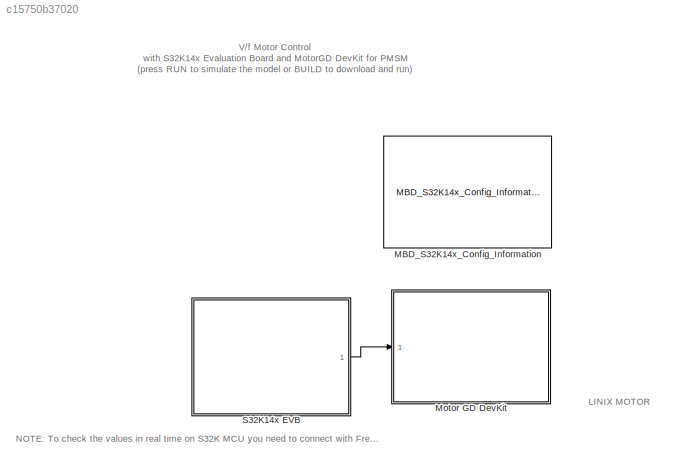
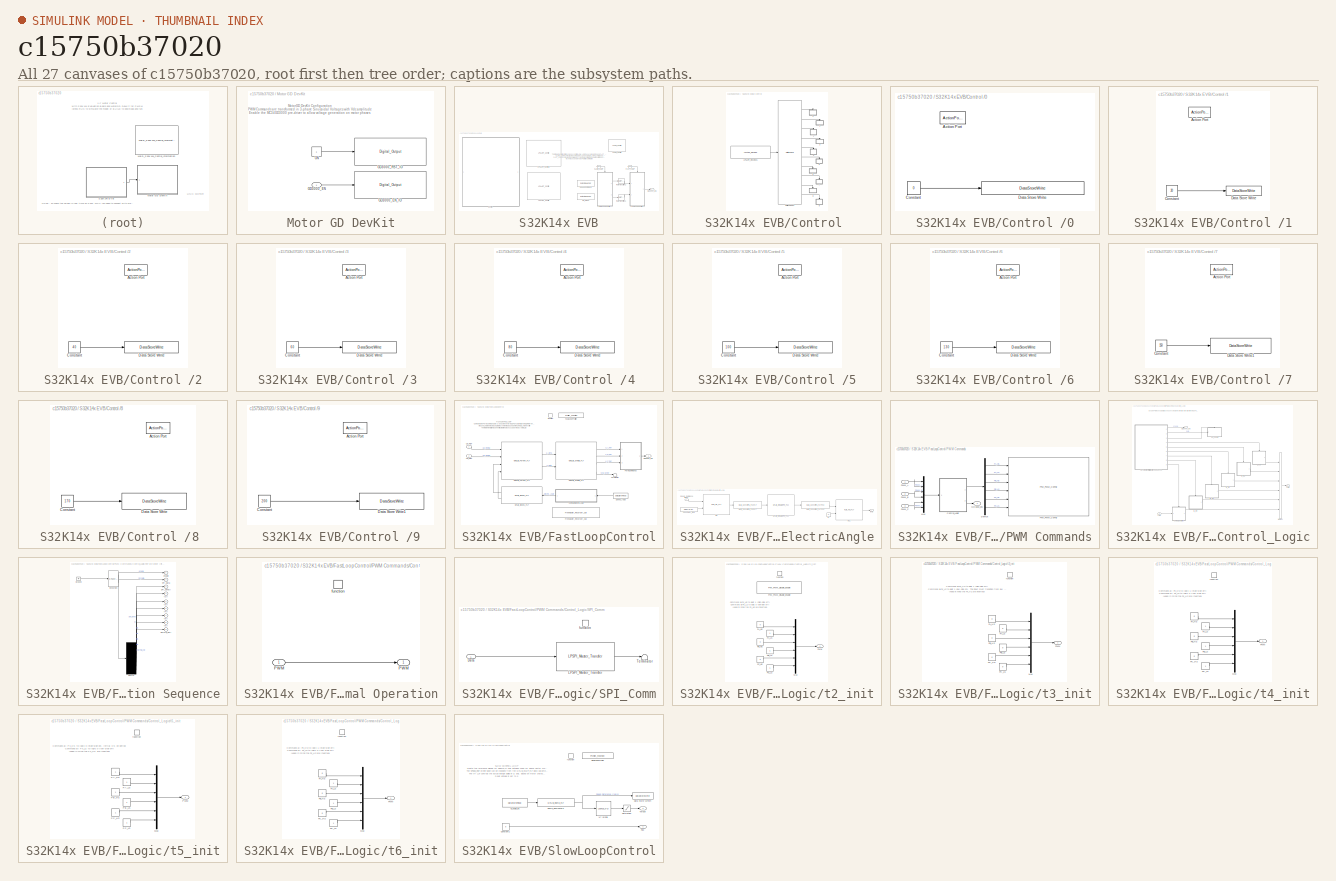
[diagram: thumbnail index - all 27 canvases of the model, root first then tree order]
MODEL slx_c15750b37020
KIND model
CONFIG AbsTol = auto
CONFIG EnableMultiTasking = off
CONFIG FixedStep = auto
CONFIG InitFcn = mbd_s32k14_consistency_checks(bdroot(gcs));
CONFIG MaxStep = auto
CONFIG MinStep = auto
CONFIG RelTol = 1e-3
CONFIG SampleTimeConstraint = Unconstrained
CONFIG Solver = FixedStepDiscrete
CONFIG SolverName = FixedStepDiscrete
CONFIG StartTime = 0.0
CONFIG StopTime = 2
WORKSPACE source: MAT-file member
WORKSPACE C_LST = 0.0001
BLOCK [Reference] MBD_S32K14x_Config_Information  REF=mbd_s32k14_ec_toolbox/MBD_S32K14x_Config_Information
  Ports = []
  Priority = 1
  SourceBlock = mbd_s32k14_ec_toolbox/MBD_S32K14x_Config_Information
  SourceType = MBDTBX_EC_S32K14
BLOCK [SubSystem] Motor GD DevKit
  Ports = [1]
  RequestExecContextInheritance = off
BLOCK [Inport] Motor GD DevKit/GD3000_EN
  IconDisplay = Port number
BLOCK [Reference] Motor GD DevKit/GD3000_EN_IO  REF=mbd_s32k14_ec_toolbox/GPIO Blocks/Digital_Output
  Ports = [1]
  SourceBlock = mbd_s32k14_ec_toolbox/GPIO Blocks/Digital_Output
  SourceType = gpio_s32k14_output
BLOCK [Reference] Motor GD DevKit/GD3000_RST_IO  REF=mbd_s32k14_ec_toolbox/GPIO Blocks/Digital_Output
  Ports = [1]
  SourceBlock = mbd_s32k14_ec_toolbox/GPIO Blocks/Digital_Output
  SourceType = gpio_s32k14_output
BLOCK [Constant] Motor GD DevKit/ON
  OutDataTypeStr = boolean
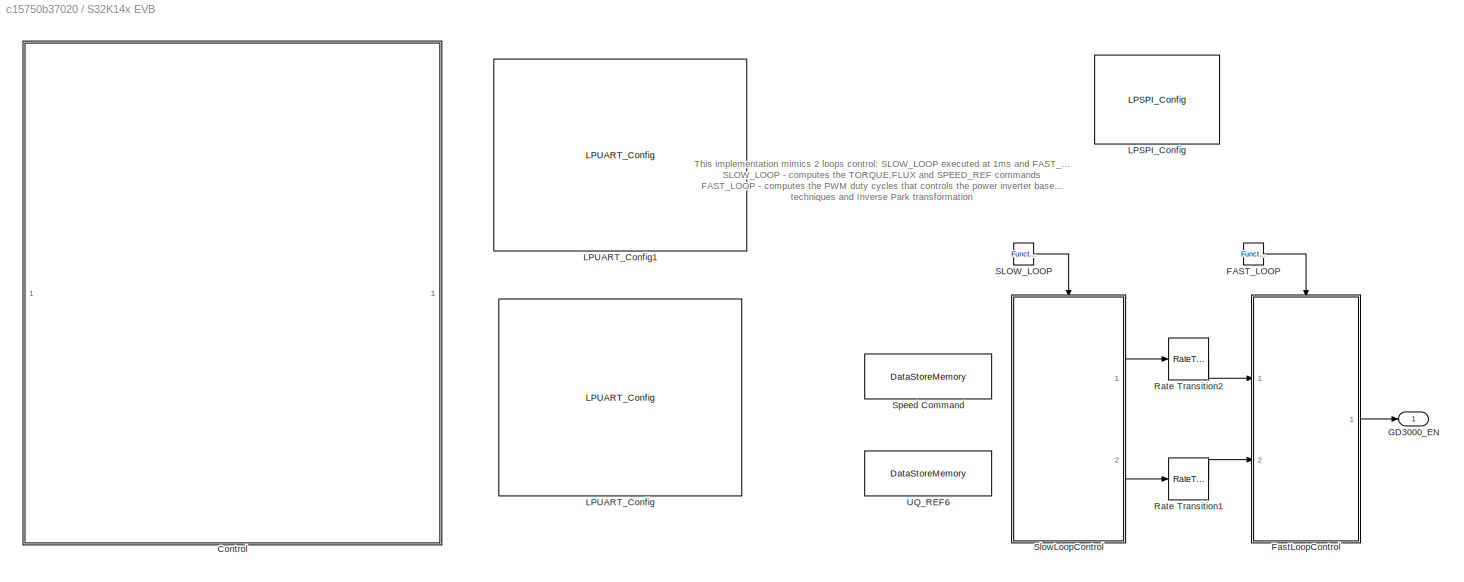
BLOCK [SubSystem] S32K14x EVB
  Ports = [0, 1]
  RequestExecContextInheritance = off
BLOCK [SubSystem] S32K14x EVB/Control 
  Ports = []
  RequestExecContextInheritance = off
BLOCK [SubSystem] S32K14x EVB/Control /0
  Ports = [0, 0, 0, 0, 0, 0, 0, 1]
  RequestExecContextInheritance = off
  TreatAsAtomicUnit = on
BLOCK [ActionPort] S32K14x EVB/Control /0/Action Port
  ActionType = case
BLOCK [Constant] S32K14x EVB/Control /0/Constant
  OutDataTypeStr = single
  Value = 0
BLOCK [DataStoreWrite] S32K14x EVB/Control /0/Data Store Write
  DataStoreName = SPEED_CMD
  Ports = [1]
BLOCK [SubSystem] S32K14x EVB/Control /1
  Ports = [0, 0, 0, 0, 0, 0, 0, 1]
  RequestExecContextInheritance = off
  TreatAsAtomicUnit = on
BLOCK [ActionPort] S32K14x EVB/Control /1/Action Port
  ActionType = case
BLOCK [Constant] S32K14x EVB/Control /1/Constant
  OutDataTypeStr = single
  Value = 20
BLOCK [DataStoreWrite] S32K14x EVB/Control /1/Data Store Write
  DataStoreName = SPEED_CMD
  Ports = [1]
BLOCK [SubSystem] S32K14x EVB/Control /2
  Ports = [0, 0, 0, 0, 0, 0, 0, 1]
  RequestExecContextInheritance = off
  TreatAsAtomicUnit = on
BLOCK [ActionPort] S32K14x EVB/Control /2/Action Port
  ActionType = case
BLOCK [Constant] S32K14x EVB/Control /2/Constant
  OutDataTypeStr = single
  Value = 40
BLOCK [DataStoreWrite] S32K14x EVB/Control /2/Data Store Write
  DataStoreName = SPEED_CMD
  Ports = [1]
BLOCK [SubSystem] S32K14x EVB/Control /3 
  Ports = [0, 0, 0, 0, 0, 0, 0, 1]
  RequestExecContextInheritance = off
  TreatAsAtomicUnit = on
BLOCK [ActionPort] S32K14x EVB/Control /3 /Action Port
  ActionType = case
BLOCK [Constant] S32K14x EVB/Control /3 /Constant
  OutDataTypeStr = single
  Value = 60
BLOCK [DataStoreWrite] S32K14x EVB/Control /3 /Data Store Write
  DataStoreName = SPEED_CMD
  Ports = [1]
BLOCK [SubSystem] S32K14x EVB/Control /4 
  Ports = [0, 0, 0, 0, 0, 0, 0, 1]
  RequestExecContextInheritance = off
  TreatAsAtomicUnit = on
BLOCK [ActionPort] S32K14x EVB/Control /4 /Action Port
  ActionType = case
BLOCK [Constant] S32K14x EVB/Control /4 /Constant
  OutDataTypeStr = single
  Value = 80
BLOCK [DataStoreWrite] S32K14x EVB/Control /4 /Data Store Write
  DataStoreName = SPEED_CMD
  Ports = [1]
BLOCK [SubSystem] S32K14x EVB/Control /5
  Ports = [0, 0, 0, 0, 0, 0, 0, 1]
  RequestExecContextInheritance = off
  TreatAsAtomicUnit = on
BLOCK [ActionPort] S32K14x EVB/Control /5/Action Port
  ActionType = case
BLOCK [Constant] S32K14x EVB/Control /5/Constant
  OutDataTypeStr = single
  Value = 100
BLOCK [DataStoreWrite] S32K14x EVB/Control /5/Data Store Write
  DataStoreName = SPEED_CMD
  Ports = [1]
BLOCK [SubSystem] S32K14x EVB/Control /6
  Ports = [0, 0, 0, 0, 0, 0, 0, 1]
  RequestExecContextInheritance = off
  TreatAsAtomicUnit = on
BLOCK [ActionPort] S32K14x EVB/Control /6/Action Port
  ActionType = case
BLOCK [Constant] S32K14x EVB/Control /6/Constant
  OutDataTypeStr = single
  Value = 130
BLOCK [DataStoreWrite] S32K14x EVB/Control /6/Data Store Write
  DataStoreName = SPEED_CMD
  Ports = [1]
BLOCK [SubSystem] S32K14x EVB/Control /7
  Ports = [0, 0, 0, 0, 0, 0, 0, 1]
  RequestExecContextInheritance = off
  TreatAsAtomicUnit = on
BLOCK [ActionPort] S32K14x EVB/Control /7/Action Port
  ActionType = case
BLOCK [Constant] S32K14x EVB/Control /7/Constant
  OutDataTypeStr = single
  Value = 150
BLOCK [DataStoreWrite] S32K14x EVB/Control /7/Data Store Write1
  DataStoreName = SPEED_REF
  Ports = [1]
BLOCK [SubSystem] S32K14x EVB/Control /8 
  Ports = [0, 0, 0, 0, 0, 0, 0, 1]
  RequestExecContextInheritance = off
  TreatAsAtomicUnit = on
BLOCK [ActionPort] S32K14x EVB/Control /8 /Action Port
  ActionType = case
BLOCK [Constant] S32K14x EVB/Control /8 /Constant
  OutDataTypeStr = single
  Value = 170
BLOCK [DataStoreWrite] S32K14x EVB/Control /8 /Data Store Write
  DataStoreName = SPEED_REF
  Ports = [1]
BLOCK [SubSystem] S32K14x EVB/Control /9
  Ports = [0, 0, 0, 0, 0, 0, 0, 1]
  RequestExecContextInheritance = off
  TreatAsAtomicUnit = on
BLOCK [ActionPort] S32K14x EVB/Control /9/Action Port
  ActionType = case
BLOCK [Constant] S32K14x EVB/Control /9/Constant
  OutDataTypeStr = single
  Value = 200
BLOCK [DataStoreWrite] S32K14x EVB/Control /9/Data Store Write1
  DataStoreName = SPEED_REF
  Ports = [1]
BLOCK [Reference] S32K14x EVB/Control /LPUART_Receive1  REF=mbd_s32k14_ec_toolbox/Communication Blocks/UART Blocks/LPUART_Receive
  Ports = [0, 1]
  Priority = 1
  SourceBlock = mbd_s32k14_ec_toolbox/Communication Blocks/UART Blocks/LPUART_Receive
  SourceType = lpuart_s32k14_receive
BLOCK [SwitchCase] S32K14x EVB/Control /Switch Case1
  CaseConditions = {hex2dec('030'),hex2dec('031'),hex2dec('032'),hex2dec('033'),hex2dec('034'),hex2dec('035'),hex2dec('036'),hex2dec('037'),hex2dec('038'),hex2dec('039')}
  Ports = [1, 10]
  ShowDefaultCase = off
BLOCK [Reference] S32K14x EVB/FAST_LOOP  REF=simulink/Ports &
Subsystems/Function-Call
Generator
  Ports = [0, 1]
  SourceBlock = simulink/Ports &\nSubsystems/Function-Call\nGenerator
  SourceProductBaseCode = SL
  SourceProductName = Simulink
  SourceType = Function-Call Generator
BLOCK [SubSystem] S32K14x EVB/FastLoopControl
  Ports = [2, 1, 0, 1]
  RTWFcnNameOpts = Use subsystem name
  RTWSystemCode = Reusable function
  RequestExecContextInheritance = off
BLOCK [SubSystem] S32K14x EVB/FastLoopControl/ComputeElectricAngle
  Ports = [1, 1]
  RTWFcnNameOpts = Use subsystem name
  RTWSystemCode = Reusable function
  RequestExecContextInheritance = off
  TreatAsAtomicUnit = on
BLOCK [Reference] S32K14x EVB/FastLoopControl/ComputeElectricAngle/DIV  REF=ammclib_bam_s32k14x/MLIB/bam_flt/MLIB_Div_FLT  (lib defined in mdl_f341c9dd7fd9)
  Ports = [2, 1]
  SourceBlock = ammclib_bam_s32k14x/MLIB/bam_flt/MLIB_Div_FLT
  SourceType = MLIB_Div_FLT
BLOCK [Reference] S32K14x EVB/FastLoopControl/ComputeElectricAngle/GFLIB_IntegratorTR_F32  REF=ammclib_bam_s32k14x/GFLIB/bam_f32/GFLIB_IntegratorTR_F32  (lib defined in mdl_f341c9dd7fd9)
  Ports = [1, 1]
  SourceBlock = ammclib_bam_s32k14x/GFLIB/bam_f32/GFLIB_IntegratorTR_F32
  SourceType = GFLIB_IntegratorTR_F32
BLOCK [Reference] S32K14x EVB/FastLoopControl/ComputeElectricAngle/MLIB_ConvertPU_F32FLT  REF=ammclib_bam_s32k14x/MLIB/bam_f32/MLIB_ConvertPU_F32FLT  (lib defined in mdl_f341c9dd7fd9)
  Ports = [1, 1]
  SourceBlock = ammclib_bam_s32k14x/MLIB/bam_f32/MLIB_ConvertPU_F32FLT
  SourceType = MLIB_ConvertPU_F32
BLOCK [Reference] S32K14x EVB/FastLoopControl/ComputeElectricAngle/MLIB_ConvertPU_FLTF32  REF=ammclib_bam_s32k14x/MLIB/bam_flt/MLIB_ConvertPU_FLTF32  (lib defined in mdl_f341c9dd7fd9)
  Ports = [1, 1]
  SourceBlock = ammclib_bam_s32k14x/MLIB/bam_flt/MLIB_ConvertPU_FLTF32
  SourceType = MLIB_ConvertPU_FLT
BLOCK [Reference] S32K14x EVB/FastLoopControl/ComputeElectricAngle/MUL  REF=ammclib_bam_s32k14x/MLIB/bam_flt/MLIB_Mul_FLT  (lib defined in mdl_f341c9dd7fd9)
  Ports = [2, 1]
  SourceBlock = ammclib_bam_s32k14x/MLIB/bam_flt/MLIB_Mul_FLT
  SourceType = MLIB_Mul_FLT
BLOCK [Constant] S32K14x EVB/FastLoopControl/ComputeElectricAngle/SpeedMax_rad//s
  OutDataTypeStr = Inherit: Inherit via back propagation
  Value = Nmax*(2*pi/60)
BLOCK [Inport] S32K14x EVB/FastLoopControl/ComputeElectricAngle/Speed_Reference [rad//s]
  IconDisplay = Port number
BLOCK [Constant] S32K14x EVB/FastLoopControl/ComputeElectricAngle/pi
  OutDataTypeStr = Inherit: Inherit via back propagation
  Value = pi
BLOCK [Outport] S32K14x EVB/FastLoopControl/ComputeElectricAngle/theta
  IconDisplay = Port number
  OutDataTypeStr = single
  SignalType = real
  VarSizeSig = No
BLOCK [Reference] S32K14x EVB/FastLoopControl/FastLoopProfiler  REF=mbd_s32k14_ec_toolbox/Utility Blocks/Profiler_Function
  Ports = []
  SourceBlock = mbd_s32k14_ec_toolbox/Utility Blocks/Profiler_Function
  SourceType = profiler_s32k14_func
BLOCK [Reference] S32K14x EVB/FastLoopControl/FreeMaster_Recorder_Call  REF=mbd_s32k14_ec_toolbox/Utility Blocks/FreeMaster_Recorder_Call
  Commented = on
  Ports = []
  SourceBlock = mbd_s32k14_ec_toolbox/Utility Blocks/FreeMaster_Recorder_Call
  SourceType = fm_s32k14_recorder_call
BLOCK [Outport] S32K14x EVB/FastLoopControl/GD3000_EN
  IconDisplay = Port number
BLOCK [Reference] S32K14x EVB/FastLoopControl/GFLIB_SinCos_FLT  REF=ammclib_bam_s32k14x/GFLIB/bam_flt/GFLIB_SinCos_FLT  (lib defined in mdl_f341c9dd7fd9)
  Ports = [1, 2]
  SourceBlock = ammclib_bam_s32k14x/GFLIB/bam_flt/GFLIB_SinCos_FLT
  SourceType = GFLIB_SinCos_FLT
BLOCK [Reference] S32K14x EVB/FastLoopControl/GMCLIB_ParkInv_FLT  REF=ammclib_bam_s32k14x/GMCLIB/bam_flt/GMCLIB_ParkInv_FLT  (lib defined in mdl_f341c9dd7fd9)
  Ports = [4, 2]
  SourceBlock = ammclib_bam_s32k14x/GMCLIB/bam_flt/GMCLIB_ParkInv_FLT
  SourceType = GMCLIB_ParkInv_FLT
BLOCK [Reference] S32K14x EVB/FastLoopControl/GMCLIB_SvmStd_FLT  REF=ammclib_bam_s32k14x/GMCLIB/bam_flt/GMCLIB_SvmStd_FLT  (lib defined in mdl_f341c9dd7fd9)
  Ports = [2, 4]
  SourceBlock = ammclib_bam_s32k14x/GMCLIB/bam_flt/GMCLIB_SvmStd_FLT
  SourceType = GMCLIB_SvmStd_FLT
BLOCK [SubSystem] S32K14x EVB/FastLoopControl/PWM Commands
  Ports = [3, 1]
  RequestExecContextInheritance = off
BLOCK [SubSystem] S32K14x EVB/FastLoopControl/PWM Commands/Control_Logic
  Ports = [1, 2]
  RequestExecContextInheritance = off
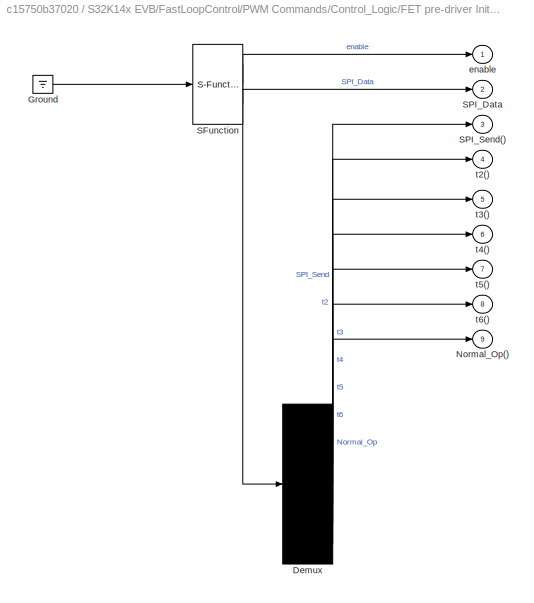
BLOCK [SubSystem] S32K14x EVB/FastLoopControl/PWM Commands/Control_Logic/FET pre-driver Initialization Sequence
  ErrorFcn = Stateflow.Translate.translate
  PermitHierarchicalResolution = ExplicitOnly
  Ports = [0, 9]
  RequestExecContextInheritance = off
  SFBlockType = Chart
  TreatAsAtomicUnit = on
BLOCK [Demux] S32K14x EVB/FastLoopControl/PWM Commands/Control_Logic/FET pre-driver Initialization Sequence/ Demux 
  Outputs = 7
  Ports = [1, 7]
BLOCK [Ground] S32K14x EVB/FastLoopControl/PWM Commands/Control_Logic/FET pre-driver Initialization Sequence/ Ground 
BLOCK [S-Function] S32K14x EVB/FastLoopControl/PWM Commands/Control_Logic/FET pre-driver Initialization Sequence/ SFunction 
  EnableBusSupport = on
  FunctionName = sf_sfun
  PortCounts = [1 3]
  Ports = [1, 3]
  SFcnIsStateOwnerBlock = off
  SFunctionDeploymentMode = off
  Tag = Stateflow S-Function Motor_control_S32K_Final 1
BLOCK [Outport] S32K14x EVB/FastLoopControl/PWM Commands/Control_Logic/FET pre-driver Initialization Sequence/Normal_Op()
  IconDisplay = Port number
  Port = 9
BLOCK [Outport] S32K14x EVB/FastLoopControl/PWM Commands/Control_Logic/FET pre-driver Initialization Sequence/SPI_Data
  IconDisplay = Port number
  Port = 2
BLOCK [Outport] S32K14x EVB/FastLoopControl/PWM Commands/Control_Logic/FET pre-driver Initialization Sequence/SPI_Send()
  IconDisplay = Port number
  Port = 3
BLOCK [Outport] S32K14x EVB/FastLoopControl/PWM Commands/Control_Logic/FET pre-driver Initialization Sequence/enable
  IconDisplay = Port number
BLOCK [Outport] S32K14x EVB/FastLoopControl/PWM Commands/Control_Logic/FET pre-driver Initialization Sequence/t2()
  IconDisplay = Port number
  Port = 4
BLOCK [Outport] S32K14x EVB/FastLoopControl/PWM Commands/Control_Logic/FET pre-driver Initialization Sequence/t3()
  IconDisplay = Port number
  Port = 5
BLOCK [Outport] S32K14x EVB/FastLoopControl/PWM Commands/Control_Logic/FET pre-driver Initialization Sequence/t4()
  IconDisplay = Port number
  Port = 6
BLOCK [Outport] S32K14x EVB/FastLoopControl/PWM Commands/Control_Logic/FET pre-driver Initialization Sequence/t5()
  IconDisplay = Port number
  Port = 7
BLOCK [Outport] S32K14x EVB/FastLoopControl/PWM Commands/Control_Logic/FET pre-driver Initialization Sequence/t6()
  IconDisplay = Port number
  Port = 8
BLOCK [Outport] S32K14x EVB/FastLoopControl/PWM Commands/Control_Logic/GD3000_EN
  IconDisplay = Port number
  Port = 2
BLOCK [Merge] S32K14x EVB/FastLoopControl/PWM Commands/Control_Logic/Merge1
  Inputs = 6
  Ports = [6, 1]
BLOCK [SubSystem] S32K14x EVB/FastLoopControl/PWM Commands/Control_Logic/Normal Operation
  Ports = [1, 1, 0, 1]
  RTWSystemCode = Reusable function
  RequestExecContextInheritance = off
  TreatAsAtomicUnit = on
BLOCK [Outport] S32K14x EVB/FastLoopControl/PWM Commands/Control_Logic/Normal Operation/PWM
  IconDisplay = Port number
  InitialOutput = 0
BLOCK [Inport] S32K14x EVB/FastLoopControl/PWM Commands/Control_Logic/Normal Operation/PWM 
  IconDisplay = Port number
  OutDataTypeStr = single
BLOCK [TriggerPort] S32K14x EVB/FastLoopControl/PWM Commands/Control_Logic/Normal Operation/function
  Ports = []
  StatesWhenEnabling = held
  TriggerType = function-call
  VariantControl = (inherit)
BLOCK [Inport] S32K14x EVB/FastLoopControl/PWM Commands/Control_Logic/PWM
  IconDisplay = Port number
BLOCK [Outport] S32K14x EVB/FastLoopControl/PWM Commands/Control_Logic/PWM 
  IconDisplay = Port number
BLOCK [SubSystem] S32K14x EVB/FastLoopControl/PWM Commands/Control_Logic/SPI_Comm
  Ports = [1, 0, 0, 1]
  RequestExecContextInheritance = off
BLOCK [Inport] S32K14x EVB/FastLoopControl/PWM Commands/Control_Logic/SPI_Comm/Data
  IconDisplay = Port number
BLOCK [Reference] S32K14x EVB/FastLoopControl/PWM Commands/Control_Logic/SPI_Comm/LPSPI_Master_Transfer  REF=mbd_s32k14_ec_toolbox/Communication Blocks/SPI Blocks/LPSPI_Master_Transfer
  Ports = [1, 1]
  SourceBlock = mbd_s32k14_ec_toolbox/Communication Blocks/SPI Blocks/LPSPI_Master_Transfer
  SourceType = lpspi_s32k14_master_transfer
BLOCK [Terminator] S32K14x EVB/FastLoopControl/PWM Commands/Control_Logic/SPI_Comm/Terminator
BLOCK [TriggerPort] S32K14x EVB/FastLoopControl/PWM Commands/Control_Logic/SPI_Comm/function
  Ports = []
  StatesWhenEnabling = held
  TriggerType = function-call
  VariantControl = (inherit)
BLOCK [SubSystem] S32K14x EVB/FastLoopControl/PWM Commands/Control_Logic/t2_init
  Ports = [0, 1, 0, 1]
  RTWSystemCode = Reusable function
  RequestExecContextInheritance = off
  TreatAsAtomicUnit = on
BLOCK [Reference] S32K14x EVB/FastLoopControl/PWM Commands/Control_Logic/t2_init/FTM_PWM_Disable_Enable  REF=mbd_s32k14_ec_toolbox/Motor Control Blocks/FTM Blocks/FTM_PWM_Disable_Enable
  Ports = []
  Priority = 1
  SourceBlock = mbd_s32k14_ec_toolbox/Motor Control Blocks/FTM Blocks/FTM_PWM_Disable_Enable
  SourceType = ftm_s32k14_pwm_disen
BLOCK [Mux] S32K14x EVB/FastLoopControl/PWM Commands/Control_Logic/t2_init/Mux
  DisplayOption = bar
  Inputs = 6
  Ports = [6, 1]
BLOCK [Constant] S32K14x EVB/FastLoopControl/PWM Commands/Control_Logic/t2_init/PA_HS
  OutDataTypeStr = single
  SampleTime = -1
  Value = 0
BLOCK [Constant] S32K14x EVB/FastLoopControl/PWM Commands/Control_Logic/t2_init/PA_LS
  OutDataTypeStr = single
  SampleTime = -1
BLOCK [Constant] S32K14x EVB/FastLoopControl/PWM Commands/Control_Logic/t2_init/PB_HS
  OutDataTypeStr = single
  SampleTime = -1
  Value = 0
BLOCK [Constant] S32K14x EVB/FastLoopControl/PWM Commands/Control_Logic/t2_init/PB_LS
  OutDataTypeStr = single
  SampleTime = -1
BLOCK [Constant] S32K14x EVB/FastLoopControl/PWM Commands/Control_Logic/t2_init/PC_HS
  OutDataTypeStr = single
  SampleTime = -1
  Value = 0
BLOCK [Constant] S32K14x EVB/FastLoopControl/PWM Commands/Control_Logic/t2_init/PC_LS
  OutDataTypeStr = single
  SampleTime = -1
BLOCK [Outport] S32K14x EVB/FastLoopControl/PWM Commands/Control_Logic/t2_init/PWM
  IconDisplay = Port number
  InitialOutput = 0
  OutDataTypeStr = single
BLOCK [TriggerPort] S32K14x EVB/FastLoopControl/PWM Commands/Control_Logic/t2_init/function
  Ports = []
  StatesWhenEnabling = held
  TriggerType = function-call
  VariantControl = (inherit)
BLOCK [SubSystem] S32K14x EVB/FastLoopControl/PWM Commands/Control_Logic/t3_init
  Ports = [0, 1, 0, 1]
  RTWSystemCode = Reusable function
  RequestExecContextInheritance = off
  TreatAsAtomicUnit = on
BLOCK [Mux] S32K14x EVB/FastLoopControl/PWM Commands/Control_Logic/t3_init/Mux
  DisplayOption = bar
  Inputs = 6
  Ports = [6, 1]
BLOCK [Constant] S32K14x EVB/FastLoopControl/PWM Commands/Control_Logic/t3_init/PA_HS
  OutDataTypeStr = single
  SampleTime = -1
  Value = 0
BLOCK [Constant] S32K14x EVB/FastLoopControl/PWM Commands/Control_Logic/t3_init/PA_LS
  OutDataTypeStr = single
  SampleTime = -1
  Value = 0
BLOCK [Constant] S32K14x EVB/FastLoopControl/PWM Commands/Control_Logic/t3_init/PB_HS
  OutDataTypeStr = single
  SampleTime = -1
  Value = 0
BLOCK [Constant] S32K14x EVB/FastLoopControl/PWM Commands/Control_Logic/t3_init/PB_LS
  OutDataTypeStr = single
  SampleTime = -1
  Value = 0
BLOCK [Constant] S32K14x EVB/FastLoopControl/PWM Commands/Control_Logic/t3_init/PC_HS
  OutDataTypeStr = single
  SampleTime = -1
  Value = 0
BLOCK [Constant] S32K14x EVB/FastLoopControl/PWM Commands/Control_Logic/t3_init/PC_LS
  OutDataTypeStr = single
  SampleTime = -1
  Value = 0
BLOCK [Outport] S32K14x EVB/FastLoopControl/PWM Commands/Control_Logic/t3_init/PWM
  IconDisplay = Port number
  InitialOutput = 0
  OutDataTypeStr = single
BLOCK [TriggerPort] S32K14x EVB/FastLoopControl/PWM Commands/Control_Logic/t3_init/function
  Ports = []
  StatesWhenEnabling = held
  TriggerType = function-call
  VariantControl = (inherit)
BLOCK [SubSystem] S32K14x EVB/FastLoopControl/PWM Commands/Control_Logic/t4_init
  Ports = [0, 1, 0, 1]
  RTWSystemCode = Reusable function
  RequestExecContextInheritance = off
  TreatAsAtomicUnit = on
BLOCK [Mux] S32K14x EVB/FastLoopControl/PWM Commands/Control_Logic/t4_init/Mux
  DisplayOption = bar
  Inputs = 6
  Ports = [6, 1]
BLOCK [Constant] S32K14x EVB/FastLoopControl/PWM Commands/Control_Logic/t4_init/PA_HS
  OutDataTypeStr = single
  SampleTime = -1
  Value = 0
BLOCK [Constant] S32K14x EVB/FastLoopControl/PWM Commands/Control_Logic/t4_init/PA_LS
  OutDataTypeStr = single
  SampleTime = -1
BLOCK [Constant] S32K14x EVB/FastLoopControl/PWM Commands/Control_Logic/t4_init/PB_HS
  OutDataTypeStr = single
  SampleTime = -1
  Value = 0
BLOCK [Constant] S32K14x EVB/FastLoopControl/PWM Commands/Control_Logic/t4_init/PB_LS
  OutDataTypeStr = single
  SampleTime = -1
BLOCK [Constant] S32K14x EVB/FastLoopControl/PWM Commands/Control_Logic/t4_init/PC_HS
  OutDataTypeStr = single
  SampleTime = -1
  Value = 0
BLOCK [Constant] S32K14x EVB/FastLoopControl/PWM Commands/Control_Logic/t4_init/PC_LS
  OutDataTypeStr = single
  SampleTime = -1
BLOCK [Outport] S32K14x EVB/FastLoopControl/PWM Commands/Control_Logic/t4_init/PWM
  IconDisplay = Port number
  InitialOutput = 0
  OutDataTypeStr = single
BLOCK [TriggerPort] S32K14x EVB/FastLoopControl/PWM Commands/Control_Logic/t4_init/function
  Ports = []
  StatesWhenEnabling = held
  TriggerType = function-call
  VariantControl = (inherit)
BLOCK [SubSystem] S32K14x EVB/FastLoopControl/PWM Commands/Control_Logic/t5_init
  Ports = [0, 1, 0, 1]
  RTWSystemCode = Reusable function
  RequestExecContextInheritance = off
  TreatAsAtomicUnit = on
BLOCK [Mux] S32K14x EVB/FastLoopControl/PWM Commands/Control_Logic/t5_init/Mux
  DisplayOption = bar
  Inputs = 6
  Ports = [6, 1]
BLOCK [Constant] S32K14x EVB/FastLoopControl/PWM Commands/Control_Logic/t5_init/PA_HS
  OutDataTypeStr = single
  SampleTime = -1
BLOCK [Constant] S32K14x EVB/FastLoopControl/PWM Commands/Control_Logic/t5_init/PA_LS
  OutDataTypeStr = single
  SampleTime = -1
BLOCK [Constant] S32K14x EVB/FastLoopControl/PWM Commands/Control_Logic/t5_init/PB_HS
  OutDataTypeStr = single
  SampleTime = -1
BLOCK [Constant] S32K14x EVB/FastLoopControl/PWM Commands/Control_Logic/t5_init/PB_LS
  OutDataTypeStr = single
  SampleTime = -1
BLOCK [Constant] S32K14x EVB/FastLoopControl/PWM Commands/Control_Logic/t5_init/PC_HS
  OutDataTypeStr = single
  SampleTime = -1
BLOCK [Constant] S32K14x EVB/FastLoopControl/PWM Commands/Control_Logic/t5_init/PC_LS
  OutDataTypeStr = single
  SampleTime = -1
BLOCK [Outport] S32K14x EVB/FastLoopControl/PWM Commands/Control_Logic/t5_init/PWM
  IconDisplay = Port number
  InitialOutput = 0
  OutDataTypeStr = single
BLOCK [TriggerPort] S32K14x EVB/FastLoopControl/PWM Commands/Control_Logic/t5_init/function
  Ports = []
  StatesWhenEnabling = held
  TriggerType = function-call
  VariantControl = (inherit)
BLOCK [SubSystem] S32K14x EVB/FastLoopControl/PWM Commands/Control_Logic/t6_init
  Ports = [0, 1, 0, 1]
  RTWSystemCode = Reusable function
  RequestExecContextInheritance = off
  TreatAsAtomicUnit = on
BLOCK [Mux] S32K14x EVB/FastLoopControl/PWM Commands/Control_Logic/t6_init/Mux
  DisplayOption = bar
  Inputs = 6
  Ports = [6, 1]
BLOCK [Constant] S32K14x EVB/FastLoopControl/PWM Commands/Control_Logic/t6_init/PA_HS
  OutDataTypeStr = single
  SampleTime = -1
  Value = 0
BLOCK [Constant] S32K14x EVB/FastLoopControl/PWM Commands/Control_Logic/t6_init/PA_LS
  OutDataTypeStr = single
  SampleTime = -1
BLOCK [Constant] S32K14x EVB/FastLoopControl/PWM Commands/Control_Logic/t6_init/PB_HS
  OutDataTypeStr = single
  SampleTime = -1
  Value = 0
BLOCK [Constant] S32K14x EVB/FastLoopControl/PWM Commands/Control_Logic/t6_init/PB_LS
  OutDataTypeStr = single
  SampleTime = -1
BLOCK [Constant] S32K14x EVB/FastLoopControl/PWM Commands/Control_Logic/t6_init/PC_HS
  OutDataTypeStr = single
  SampleTime = -1
  Value = 0
BLOCK [Constant] S32K14x EVB/FastLoopControl/PWM Commands/Control_Logic/t6_init/PC_LS
  OutDataTypeStr = single
  SampleTime = -1
BLOCK [Outport] S32K14x EVB/FastLoopControl/PWM Commands/Control_Logic/t6_init/PWM
  IconDisplay = Port number
  InitialOutput = 0
  OutDataTypeStr = single
BLOCK [TriggerPort] S32K14x EVB/FastLoopControl/PWM Commands/Control_Logic/t6_init/function
  Ports = []
  StatesWhenEnabling = held
  TriggerType = function-call
  VariantControl = (inherit)
BLOCK [Demux] S32K14x EVB/FastLoopControl/PWM Commands/Demux
  DisplayOption = bar
  Outputs = 6
  Ports = [1, 6]
BLOCK [Reference] S32K14x EVB/FastLoopControl/PWM Commands/FTM_PWM_Config  REF=mbd_s32k14_ec_toolbox/Motor Control Blocks/FTM Blocks/FTM_PWM_Config
  Ports = [6]
  SourceBlock = mbd_s32k14_ec_toolbox/Motor Control Blocks/FTM Blocks/FTM_PWM_Config
  SourceType = FTM_s32k14_pwm_config_block
BLOCK [Outport] S32K14x EVB/FastLoopControl/PWM Commands/GD3000_EN
  IconDisplay = Port number
BLOCK [Mux] S32K14x EVB/FastLoopControl/PWM Commands/Mux
  DisplayOption = bar
  Inputs = 6
  Ports = [6, 1]
BLOCK [Inport] S32K14x EVB/FastLoopControl/PWM Commands/PWM_A
  IconDisplay = Port number
BLOCK [Inport] S32K14x EVB/FastLoopControl/PWM Commands/PWM_B
  IconDisplay = Port number
  Port = 2
BLOCK [Inport] S32K14x EVB/FastLoopControl/PWM Commands/PWM_C
  IconDisplay = Port number
  Port = 3
BLOCK [DataStoreRead] S32K14x EVB/FastLoopControl/Speed_rad//s
  DataStoreName = SPEED_REF
  Ports = [0, 1]
BLOCK [Terminator] S32K14x EVB/FastLoopControl/Terminator
BLOCK [Inport] S32K14x EVB/FastLoopControl/UD_REF
  IconDisplay = Port number
BLOCK [Inport] S32K14x EVB/FastLoopControl/UQ_REF
  IconDisplay = Port number
  Port = 2
BLOCK [TriggerPort] S32K14x EVB/FastLoopControl/function
  Ports = []
  StatesWhenEnabling = held
  TriggerType = function-call
  VariantControl = (inherit)
BLOCK [Outport] S32K14x EVB/GD3000_EN
  IconDisplay = Port number
BLOCK [Reference] S32K14x EVB/LPSPI_Config   REF=mbd_s32k14_ec_toolbox/Communication Blocks/SPI Blocks/LPSPI_Config

  Ports = []
  SourceBlock = mbd_s32k14_ec_toolbox/Communication Blocks/SPI Blocks/LPSPI_Config
  SourceType = lpspi_s32k14_config
BLOCK [Reference] S32K14x EVB/LPUART_Config  REF=mbd_s32k14_ec_toolbox/Communication Blocks/UART Blocks/LPUART_Config
  Ports = []
  Priority = 1
  SourceBlock = mbd_s32k14_ec_toolbox/Communication Blocks/UART Blocks/LPUART_Config
  SourceType = lpuart_s32k14_config
BLOCK [Reference] S32K14x EVB/LPUART_Config1  REF=mbd_s32k14_ec_toolbox/Communication Blocks/UART Blocks/LPUART_Config
  Ports = []
  Priority = 2
  SourceBlock = mbd_s32k14_ec_toolbox/Communication Blocks/UART Blocks/LPUART_Config
  SourceType = lpuart_s32k14_config
BLOCK [RateTransition] S32K14x EVB/Rate Transition1
  OutPortSampleTime = C_LST
BLOCK [RateTransition] S32K14x EVB/Rate Transition2
  OutPortSampleTime = C_LST
BLOCK [Reference] S32K14x EVB/SLOW_LOOP  REF=simulink/Ports &
Subsystems/Function-Call
Generator
  Ports = [0, 1]
  SourceBlock = simulink/Ports &\nSubsystems/Function-Call\nGenerator
  SourceProductBaseCode = SL
  SourceProductName = Simulink
  SourceType = Function-Call Generator
BLOCK [SubSystem] S32K14x EVB/SlowLoopControl
  Ports = [0, 2, 0, 1]
  RTWFcnNameOpts = Use subsystem name
  RTWSystemCode = Reusable function
  RequestExecContextInheritance = off
BLOCK [Constant] S32K14x EVB/SlowLoopControl/Constant1
  OutDataTypeStr = single
  SampleTime = -1
  Value = 0
BLOCK [DataStoreWrite] S32K14x EVB/SlowLoopControl/Data Store Write4
  DataStoreName = SPEED_REF
  Ports = [1]
BLOCK [Outport] S32K14x EVB/SlowLoopControl/Flux
  IconDisplay = Port number
BLOCK [Reference] S32K14x EVB/SlowLoopControl/Ramp_RPM2RAD//S  REF=ammclib_bam_s32k14x/GFLIB/bam_flt/GFLIB_Ramp_FLT  (lib defined in mdl_f341c9dd7fd9)
  Ports = [1, 1]
  SourceBlock = ammclib_bam_s32k14x/GFLIB/bam_flt/GFLIB_Ramp_FLT
  SourceType = GFLIB_Ramp
BLOCK [Saturate] S32K14x EVB/SlowLoopControl/Saturation
  InputPortMap = u0
  LowerLimit = 0
  Ports = [1, 1]
  UpperLimit = 0.95
BLOCK [Reference] S32K14x EVB/SlowLoopControl/SlowLoopProfiler  REF=mbd_s32k14_ec_toolbox/Utility Blocks/Profiler_Function
  Ports = []
  SourceBlock = mbd_s32k14_ec_toolbox/Utility Blocks/Profiler_Function
  SourceType = profiler_s32k14_func
BLOCK [Outport] S32K14x EVB/SlowLoopControl/Torque
  IconDisplay = Port number
  Port = 2
BLOCK [Lookup_n-D] S32K14x EVB/SlowLoopControl/V//f profile
  BreakpointsForDimension1 = [0:20.94:209.4]
  InternalRulePriority = Speed
  NumberOfTableDimensions = 1
  Ports = [1, 1]
  RndMeth = Simplest
  Table = [0.20:0.075:0.95]
BLOCK [DataStoreRead] S32K14x EVB/SlowLoopControl/el_angle_inc
  DataStoreName = SPEED_CMD
  Ports = [0, 1]
BLOCK [TriggerPort] S32K14x EVB/SlowLoopControl/function
  Ports = []
  StatesWhenEnabling = held
  TriggerType = function-call
  VariantControl = (inherit)
BLOCK [DataStoreMemory] S32K14x EVB/Speed Command
  DataLogging = on
  DataStoreName = SPEED_CMD
  OutDataTypeStr = single
  OutMax = 200
  OutMin = -100
  ReadBeforeWriteMsg = warning
  ShowAdditionalParam = off
  WriteAfterReadMsg = warning
  WriteAfterWriteMsg = warning
BLOCK [DataStoreMemory] S32K14x EVB/UQ_REF6
  DataStoreName = SPEED_REF
  OutDataTypeStr = single
  ReadBeforeWriteMsg = warning
  ShowAdditionalParam = off
  WriteAfterReadMsg = warning
  WriteAfterWriteMsg = warning
ANNOTATION (root): NOTE: To check the values in real time on S32K MCU you need to connect with FreeMASTER project associated with this model. Make sure you configure the serial communication channel correctly by verifying the OpenSDA setup.
ANNOTATION (root): V/f Motor Control with S32K14x Evaluation Board and MotorGD DevKit for PMSM (press RUN to simulate the model or BUILD to download and run)
ANNOTATION (root): LINIX MOTOR
ANNOTATION Motor GD DevKit: MotorGD DevKit Configuration PWM Commands are transformed in 3-phase Sinusoidal Voltages with Vdc amplitude Enable the MC34GD3000 pre-driver to allow voltage generation on motor phases
ANNOTATION S32K14x EVB: This implementation mimics 2 loops control: SLOW_LOOP executed at 1ms and FAST_LOOP executed at 0.1ms SLOW_LOOP - computes the TORQUE,FLUX and SPEED_REF commands FAST_LOOP - computes the PWM duty cycles that controls the power inverter based on Space Vector Modulation techniques and Inverse Park transformation
ANNOTATION S32K14x EVB/FastLoopControl: FAST CONTROL LOOP Computes the PWM commands for 3-phase inverter MOSFETs starting from DQ Reference Frame Voltages: UD_REF and UQ_REF At each 0.1ms the electric angle is incremented based on the SPEED_REF profile The implementation is done with Simulink blocks supported by AMMCLIB
ANNOTATION S32K14x EVB/FastLoopControl/PWM Commands/Control_Logic: Enable PWM special startup sequence to allow correct functionality of the MOSFET MC34GD3000 pre-driver on MOTORGD
ANNOTATION S32K14x EVB/FastLoopControl/PWM Commands/Control_Logic/t2_init: Command all Px_HS to logic 1 (high-side off) Command all Px_LS to logic 0 (low-side off) (keep in mind the Px_HS are inverted)
ANNOTATION S32K14x EVB/FastLoopControl/PWM Commands/Control_Logic/t3_init: Command all Px_HS to logic 1 (high-side off) Command all Px_LS to logic 1 (low-side on). The input must transition from low to high after EN1 and EN2 have gone high (keep in mind the Px_HS are inverted)
ANNOTATION S32K14x EVB/FastLoopControl/PWM Commands/Control_Logic/t4_init: Command all Px_HS to logic 1 (high-side off) Command all Px_LS to logic 0 (low-side off) (keep in mind the Px_HS are inverted)
ANNOTATION S32K14x EVB/FastLoopControl/PWM Commands/Control_Logic/t5_init: Command all Px_HS to logic 0 (high-side on). Initial HS on period Command all Px_LS to logic 0 (low-side off) (keep in mind the Px_HS are inverted)
ANNOTATION S32K14x EVB/FastLoopControl/PWM Commands/Control_Logic/t6_init: Command all Px_HS to logic 1 (high-side off) Command all Px_LS to logic 0 (low-side off) (keep in mind the Px_HS are inverted)
ANNOTATION S32K14x EVB/SlowLoopControl: SLOW CONTROL LOOP Create the reference signals for D&Q-axis voltages used for Space Vector Modulation starting from user defined SPEED_CMD. The SPEED_REF profile slope can be changed from the GFLIB_RAMP_FLT block parameters The V/f LUT controls the actual voltage aplied in Q axis. Based on motor characterisics and available Vdc the LUT needs to be updated D axis voltage is set to 0
LINE Motor GD DevKit/GD3000_EN:1 -> Motor GD DevKit/GD3000_EN_IO:1
LINE Motor GD DevKit/ON:1 -> Motor GD DevKit/GD3000_RST_IO:1
LINE S32K14x EVB/Control /0/Constant:1 -> S32K14x EVB/Control /0/Data Store Write:1
LINE S32K14x EVB/Control /1/Constant:1 -> S32K14x EVB/Control /1/Data Store Write:1
LINE S32K14x EVB/Control /2/Constant:1 -> S32K14x EVB/Control /2/Data Store Write:1
LINE S32K14x EVB/Control /3 /Constant:1 -> S32K14x EVB/Control /3 /Data Store Write:1
LINE S32K14x EVB/Control /4 /Constant:1 -> S32K14x EVB/Control /4 /Data Store Write:1
LINE S32K14x EVB/Control /5/Constant:1 -> S32K14x EVB/Control /5/Data Store Write:1
LINE S32K14x EVB/Control /6/Constant:1 -> S32K14x EVB/Control /6/Data Store Write:1
LINE S32K14x EVB/Control /7/Constant:1 -> S32K14x EVB/Control /7/Data Store Write1:1
LINE S32K14x EVB/Control /8 /Constant:1 -> S32K14x EVB/Control /8 /Data Store Write:1
LINE S32K14x EVB/Control /9/Constant:1 -> S32K14x EVB/Control /9/Data Store Write1:1
LINE S32K14x EVB/Control /LPUART_Receive1:1 -> S32K14x EVB/Control /Switch Case1:1
LINE S32K14x EVB/Control /Switch Case1:1 -> S32K14x EVB/Control /0:ifaction
LINE S32K14x EVB/Control /Switch Case1:10 -> S32K14x EVB/Control /9:ifaction
LINE S32K14x EVB/Control /Switch Case1:2 -> S32K14x EVB/Control /1:ifaction
LINE S32K14x EVB/Control /Switch Case1:3 -> S32K14x EVB/Control /2:ifaction
LINE S32K14x EVB/Control /Switch Case1:4 -> S32K14x EVB/Control /3 :ifaction
LINE S32K14x EVB/Control /Switch Case1:5 -> S32K14x EVB/Control /4 :ifaction
LINE S32K14x EVB/Control /Switch Case1:6 -> S32K14x EVB/Control /5:ifaction
LINE S32K14x EVB/Control /Switch Case1:7 -> S32K14x EVB/Control /6:ifaction
LINE S32K14x EVB/Control /Switch Case1:8 -> S32K14x EVB/Control /7:ifaction
LINE S32K14x EVB/Control /Switch Case1:9 -> S32K14x EVB/Control /8 :ifaction
LINE S32K14x EVB/FAST_LOOP:1 -> S32K14x EVB/FastLoopControl:trigger
LINE S32K14x EVB/FastLoopControl/ComputeElectricAngle/DIV:1 -> S32K14x EVB/FastLoopControl/ComputeElectricAngle/MLIB_ConvertPU_F32FLT:1
LINE S32K14x EVB/FastLoopControl/ComputeElectricAngle/GFLIB_IntegratorTR_F32:1 -> S32K14x EVB/FastLoopControl/ComputeElectricAngle/MLIB_ConvertPU_FLTF32:1
LINE S32K14x EVB/FastLoopControl/ComputeElectricAngle/MLIB_ConvertPU_F32FLT:1 -> S32K14x EVB/FastLoopControl/ComputeElectricAngle/GFLIB_IntegratorTR_F32:1
LINE S32K14x EVB/FastLoopControl/ComputeElectricAngle/MLIB_ConvertPU_FLTF32:1 -> S32K14x EVB/FastLoopControl/ComputeElectricAngle/MUL:1
LINE S32K14x EVB/FastLoopControl/ComputeElectricAngle/MUL:1 -> S32K14x EVB/FastLoopControl/ComputeElectricAngle/theta:1
LINE S32K14x EVB/FastLoopControl/ComputeElectricAngle/SpeedMax_rad//s:1 -> S32K14x EVB/FastLoopControl/ComputeElectricAngle/DIV:2
LINE S32K14x EVB/FastLoopControl/ComputeElectricAngle/Speed_Reference [rad//s]:1 -> S32K14x EVB/FastLoopControl/ComputeElectricAngle/DIV:1
LINE S32K14x EVB/FastLoopControl/ComputeElectricAngle/pi:1 -> S32K14x EVB/FastLoopControl/ComputeElectricAngle/MUL:2
LINE S32K14x EVB/FastLoopControl/ComputeElectricAngle:1 -> S32K14x EVB/FastLoopControl/GFLIB_SinCos_FLT:1
LINE S32K14x EVB/FastLoopControl/GFLIB_SinCos_FLT:1 -> S32K14x EVB/FastLoopControl/GMCLIB_ParkInv_FLT:3
LINE S32K14x EVB/FastLoopControl/GFLIB_SinCos_FLT:2 -> S32K14x EVB/FastLoopControl/GMCLIB_ParkInv_FLT:4
LINE S32K14x EVB/FastLoopControl/GMCLIB_ParkInv_FLT:1 -> S32K14x EVB/FastLoopControl/GMCLIB_SvmStd_FLT:1
LINE S32K14x EVB/FastLoopControl/GMCLIB_ParkInv_FLT:2 -> S32K14x EVB/FastLoopControl/GMCLIB_SvmStd_FLT:2
LINE S32K14x EVB/FastLoopControl/GMCLIB_SvmStd_FLT:1 -> S32K14x EVB/FastLoopControl/PWM Commands:1
LINE S32K14x EVB/FastLoopControl/GMCLIB_SvmStd_FLT:2 -> S32K14x EVB/FastLoopControl/PWM Commands:2
LINE S32K14x EVB/FastLoopControl/GMCLIB_SvmStd_FLT:3 -> S32K14x EVB/FastLoopControl/PWM Commands:3
LINE S32K14x EVB/FastLoopControl/GMCLIB_SvmStd_FLT:4 -> S32K14x EVB/FastLoopControl/Terminator:1
LINE S32K14x EVB/FastLoopControl/PWM Commands/Control_Logic/FET pre-driver Initialization Sequence:1 -> S32K14x EVB/FastLoopControl/PWM Commands/Control_Logic/GD3000_EN:1
LINE S32K14x EVB/FastLoopControl/PWM Commands/Control_Logic/FET pre-driver Initialization Sequence:2 -> S32K14x EVB/FastLoopControl/PWM Commands/Control_Logic/SPI_Comm:1
LINE S32K14x EVB/FastLoopControl/PWM Commands/Control_Logic/FET pre-driver Initialization Sequence:3 -> S32K14x EVB/FastLoopControl/PWM Commands/Control_Logic/SPI_Comm:trigger
LINE S32K14x EVB/FastLoopControl/PWM Commands/Control_Logic/FET pre-driver Initialization Sequence:4 -> S32K14x EVB/FastLoopControl/PWM Commands/Control_Logic/t2_init:trigger
LINE S32K14x EVB/FastLoopControl/PWM Commands/Control_Logic/FET pre-driver Initialization Sequence:5 -> S32K14x EVB/FastLoopControl/PWM Commands/Control_Logic/t3_init:trigger
LINE S32K14x EVB/FastLoopControl/PWM Commands/Control_Logic/FET pre-driver Initialization Sequence:6 -> S32K14x EVB/FastLoopControl/PWM Commands/Control_Logic/t4_init:trigger
LINE S32K14x EVB/FastLoopControl/PWM Commands/Control_Logic/FET pre-driver Initialization Sequence:7 -> S32K14x EVB/FastLoopControl/PWM Commands/Control_Logic/t5_init:trigger
LINE S32K14x EVB/FastLoopControl/PWM Commands/Control_Logic/FET pre-driver Initialization Sequence:8 -> S32K14x EVB/FastLoopControl/PWM Commands/Control_Logic/t6_init:trigger
LINE S32K14x EVB/FastLoopControl/PWM Commands/Control_Logic/FET pre-driver Initialization Sequence:9 -> S32K14x EVB/FastLoopControl/PWM Commands/Control_Logic/Normal Operation:trigger
LINE S32K14x EVB/FastLoopControl/PWM Commands/Control_Logic/Merge1:1 -> S32K14x EVB/FastLoopControl/PWM Commands/Control_Logic/PWM :1
LINE S32K14x EVB/FastLoopControl/PWM Commands/Control_Logic/Normal Operation/PWM :1 -> S32K14x EVB/FastLoopControl/PWM Commands/Control_Logic/Normal Operation/PWM:1
LINE S32K14x EVB/FastLoopControl/PWM Commands/Control_Logic/Normal Operation:1 -> S32K14x EVB/FastLoopControl/PWM Commands/Control_Logic/Merge1:6
LINE S32K14x EVB/FastLoopControl/PWM Commands/Control_Logic/PWM:1 -> S32K14x EVB/FastLoopControl/PWM Commands/Control_Logic/Normal Operation:1
LINE S32K14x EVB/FastLoopControl/PWM Commands/Control_Logic/SPI_Comm/Data:1 -> S32K14x EVB/FastLoopControl/PWM Commands/Control_Logic/SPI_Comm/LPSPI_Master_Transfer:1
LINE S32K14x EVB/FastLoopControl/PWM Commands/Control_Logic/SPI_Comm/LPSPI_Master_Transfer:1 -> S32K14x EVB/FastLoopControl/PWM Commands/Control_Logic/SPI_Comm/Terminator:1
LINE S32K14x EVB/FastLoopControl/PWM Commands/Control_Logic/t2_init/Mux:1 -> S32K14x EVB/FastLoopControl/PWM Commands/Control_Logic/t2_init/PWM:1
LINE S32K14x EVB/FastLoopControl/PWM Commands/Control_Logic/t2_init/PA_HS:1 -> S32K14x EVB/FastLoopControl/PWM Commands/Control_Logic/t2_init/Mux:1
LINE S32K14x EVB/FastLoopControl/PWM Commands/Control_Logic/t2_init/PA_LS:1 -> S32K14x EVB/FastLoopControl/PWM Commands/Control_Logic/t2_init/Mux:2
LINE S32K14x EVB/FastLoopControl/PWM Commands/Control_Logic/t2_init/PB_HS:1 -> S32K14x EVB/FastLoopControl/PWM Commands/Control_Logic/t2_init/Mux:3
LINE S32K14x EVB/FastLoopControl/PWM Commands/Control_Logic/t2_init/PB_LS:1 -> S32K14x EVB/FastLoopControl/PWM Commands/Control_Logic/t2_init/Mux:4
LINE S32K14x EVB/FastLoopControl/PWM Commands/Control_Logic/t2_init/PC_HS:1 -> S32K14x EVB/FastLoopControl/PWM Commands/Control_Logic/t2_init/Mux:5
LINE S32K14x EVB/FastLoopControl/PWM Commands/Control_Logic/t2_init/PC_LS:1 -> S32K14x EVB/FastLoopControl/PWM Commands/Control_Logic/t2_init/Mux:6
LINE S32K14x EVB/FastLoopControl/PWM Commands/Control_Logic/t2_init:1 -> S32K14x EVB/FastLoopControl/PWM Commands/Control_Logic/Merge1:1
LINE S32K14x EVB/FastLoopControl/PWM Commands/Control_Logic/t3_init/Mux:1 -> S32K14x EVB/FastLoopControl/PWM Commands/Control_Logic/t3_init/PWM:1
LINE S32K14x EVB/FastLoopControl/PWM Commands/Control_Logic/t3_init/PA_HS:1 -> S32K14x EVB/FastLoopControl/PWM Commands/Control_Logic/t3_init/Mux:1
LINE S32K14x EVB/FastLoopControl/PWM Commands/Control_Logic/t3_init/PA_LS:1 -> S32K14x EVB/FastLoopControl/PWM Commands/Control_Logic/t3_init/Mux:2
LINE S32K14x EVB/FastLoopControl/PWM Commands/Control_Logic/t3_init/PB_HS:1 -> S32K14x EVB/FastLoopControl/PWM Commands/Control_Logic/t3_init/Mux:3
LINE S32K14x EVB/FastLoopControl/PWM Commands/Control_Logic/t3_init/PB_LS:1 -> S32K14x EVB/FastLoopControl/PWM Commands/Control_Logic/t3_init/Mux:4
LINE S32K14x EVB/FastLoopControl/PWM Commands/Control_Logic/t3_init/PC_HS:1 -> S32K14x EVB/FastLoopControl/PWM Commands/Control_Logic/t3_init/Mux:5
LINE S32K14x EVB/FastLoopControl/PWM Commands/Control_Logic/t3_init/PC_LS:1 -> S32K14x EVB/FastLoopControl/PWM Commands/Control_Logic/t3_init/Mux:6
LINE S32K14x EVB/FastLoopControl/PWM Commands/Control_Logic/t3_init:1 -> S32K14x EVB/FastLoopControl/PWM Commands/Control_Logic/Merge1:2
LINE S32K14x EVB/FastLoopControl/PWM Commands/Control_Logic/t4_init/Mux:1 -> S32K14x EVB/FastLoopControl/PWM Commands/Control_Logic/t4_init/PWM:1
LINE S32K14x EVB/FastLoopControl/PWM Commands/Control_Logic/t4_init/PA_HS:1 -> S32K14x EVB/FastLoopControl/PWM Commands/Control_Logic/t4_init/Mux:1
LINE S32K14x EVB/FastLoopControl/PWM Commands/Control_Logic/t4_init/PA_LS:1 -> S32K14x EVB/FastLoopControl/PWM Commands/Control_Logic/t4_init/Mux:2
LINE S32K14x EVB/FastLoopControl/PWM Commands/Control_Logic/t4_init/PB_HS:1 -> S32K14x EVB/FastLoopControl/PWM Commands/Control_Logic/t4_init/Mux:3
LINE S32K14x EVB/FastLoopControl/PWM Commands/Control_Logic/t4_init/PB_LS:1 -> S32K14x EVB/FastLoopControl/PWM Commands/Control_Logic/t4_init/Mux:4
LINE S32K14x EVB/FastLoopControl/PWM Commands/Control_Logic/t4_init/PC_HS:1 -> S32K14x EVB/FastLoopControl/PWM Commands/Control_Logic/t4_init/Mux:5
LINE S32K14x EVB/FastLoopControl/PWM Commands/Control_Logic/t4_init/PC_LS:1 -> S32K14x EVB/FastLoopControl/PWM Commands/Control_Logic/t4_init/Mux:6
LINE S32K14x EVB/FastLoopControl/PWM Commands/Control_Logic/t4_init:1 -> S32K14x EVB/FastLoopControl/PWM Commands/Control_Logic/Merge1:3
LINE S32K14x EVB/FastLoopControl/PWM Commands/Control_Logic/t5_init/Mux:1 -> S32K14x EVB/FastLoopControl/PWM Commands/Control_Logic/t5_init/PWM:1
LINE S32K14x EVB/FastLoopControl/PWM Commands/Control_Logic/t5_init/PA_HS:1 -> S32K14x EVB/FastLoopControl/PWM Commands/Control_Logic/t5_init/Mux:1
LINE S32K14x EVB/FastLoopControl/PWM Commands/Control_Logic/t5_init/PA_LS:1 -> S32K14x EVB/FastLoopControl/PWM Commands/Control_Logic/t5_init/Mux:2
LINE S32K14x EVB/FastLoopControl/PWM Commands/Control_Logic/t5_init/PB_HS:1 -> S32K14x EVB/FastLoopControl/PWM Commands/Control_Logic/t5_init/Mux:3
LINE S32K14x EVB/FastLoopControl/PWM Commands/Control_Logic/t5_init/PB_LS:1 -> S32K14x EVB/FastLoopControl/PWM Commands/Control_Logic/t5_init/Mux:4
LINE S32K14x EVB/FastLoopControl/PWM Commands/Control_Logic/t5_init/PC_HS:1 -> S32K14x EVB/FastLoopControl/PWM Commands/Control_Logic/t5_init/Mux:5
LINE S32K14x EVB/FastLoopControl/PWM Commands/Control_Logic/t5_init/PC_LS:1 -> S32K14x EVB/FastLoopControl/PWM Commands/Control_Logic/t5_init/Mux:6
LINE S32K14x EVB/FastLoopControl/PWM Commands/Control_Logic/t5_init:1 -> S32K14x EVB/FastLoopControl/PWM Commands/Control_Logic/Merge1:4
LINE S32K14x EVB/FastLoopControl/PWM Commands/Control_Logic/t6_init/Mux:1 -> S32K14x EVB/FastLoopControl/PWM Commands/Control_Logic/t6_init/PWM:1
LINE S32K14x EVB/FastLoopControl/PWM Commands/Control_Logic/t6_init/PA_HS:1 -> S32K14x EVB/FastLoopControl/PWM Commands/Control_Logic/t6_init/Mux:1
LINE S32K14x EVB/FastLoopControl/PWM Commands/Control_Logic/t6_init/PA_LS:1 -> S32K14x EVB/FastLoopControl/PWM Commands/Control_Logic/t6_init/Mux:2
LINE S32K14x EVB/FastLoopControl/PWM Commands/Control_Logic/t6_init/PB_HS:1 -> S32K14x EVB/FastLoopControl/PWM Commands/Control_Logic/t6_init/Mux:3
LINE S32K14x EVB/FastLoopControl/PWM Commands/Control_Logic/t6_init/PB_LS:1 -> S32K14x EVB/FastLoopControl/PWM Commands/Control_Logic/t6_init/Mux:4
LINE S32K14x EVB/FastLoopControl/PWM Commands/Control_Logic/t6_init/PC_HS:1 -> S32K14x EVB/FastLoopControl/PWM Commands/Control_Logic/t6_init/Mux:5
LINE S32K14x EVB/FastLoopControl/PWM Commands/Control_Logic/t6_init/PC_LS:1 -> S32K14x EVB/FastLoopControl/PWM Commands/Control_Logic/t6_init/Mux:6
LINE S32K14x EVB/FastLoopControl/PWM Commands/Control_Logic/t6_init:1 -> S32K14x EVB/FastLoopControl/PWM Commands/Control_Logic/Merge1:5
LINE S32K14x EVB/FastLoopControl/PWM Commands/Control_Logic:1 -> S32K14x EVB/FastLoopControl/PWM Commands/Demux:1
LINE S32K14x EVB/FastLoopControl/PWM Commands/Control_Logic:2 -> S32K14x EVB/FastLoopControl/PWM Commands/GD3000_EN:1
LINE S32K14x EVB/FastLoopControl/PWM Commands/Demux:1 -> S32K14x EVB/FastLoopControl/PWM Commands/FTM_PWM_Config:1
LINE S32K14x EVB/FastLoopControl/PWM Commands/Demux:2 -> S32K14x EVB/FastLoopControl/PWM Commands/FTM_PWM_Config:2
LINE S32K14x EVB/FastLoopControl/PWM Commands/Demux:3 -> S32K14x EVB/FastLoopControl/PWM Commands/FTM_PWM_Config:3
LINE S32K14x EVB/FastLoopControl/PWM Commands/Demux:4 -> S32K14x EVB/FastLoopControl/PWM Commands/FTM_PWM_Config:4
LINE S32K14x EVB/FastLoopControl/PWM Commands/Demux:5 -> S32K14x EVB/FastLoopControl/PWM Commands/FTM_PWM_Config:5
LINE S32K14x EVB/FastLoopControl/PWM Commands/Demux:6 -> S32K14x EVB/FastLoopControl/PWM Commands/FTM_PWM_Config:6
LINE S32K14x EVB/FastLoopControl/PWM Commands/Mux:1 -> S32K14x EVB/FastLoopControl/PWM Commands/Control_Logic:1
NET S32K14x EVB/FastLoopControl/PWM Commands/PWM_A:1 -> S32K14x EVB/FastLoopControl/PWM Commands/Mux:1, S32K14x EVB/FastLoopControl/PWM Commands/Mux:2
NET S32K14x EVB/FastLoopControl/PWM Commands/PWM_B:1 -> S32K14x EVB/FastLoopControl/PWM Commands/Mux:3, S32K14x EVB/FastLoopControl/PWM Commands/Mux:4
NET S32K14x EVB/FastLoopControl/PWM Commands/PWM_C:1 -> S32K14x EVB/FastLoopControl/PWM Commands/Mux:5, S32K14x EVB/FastLoopControl/PWM Commands/Mux:6
LINE S32K14x EVB/FastLoopControl/PWM Commands:1 -> S32K14x EVB/FastLoopControl/GD3000_EN:1
LINE S32K14x EVB/FastLoopControl/Speed_rad//s:1 -> S32K14x EVB/FastLoopControl/ComputeElectricAngle:1
LINE S32K14x EVB/FastLoopControl/UD_REF:1 -> S32K14x EVB/FastLoopControl/GMCLIB_ParkInv_FLT:1
LINE S32K14x EVB/FastLoopControl/UQ_REF:1 -> S32K14x EVB/FastLoopControl/GMCLIB_ParkInv_FLT:2
LINE S32K14x EVB/FastLoopControl:1 -> S32K14x EVB/GD3000_EN:1
LINE S32K14x EVB/Rate Transition1:1 -> S32K14x EVB/FastLoopControl:2
LINE S32K14x EVB/Rate Transition2:1 -> S32K14x EVB/FastLoopControl:1
LINE S32K14x EVB/SLOW_LOOP:1 -> S32K14x EVB/SlowLoopControl:trigger
LINE S32K14x EVB/SlowLoopControl/Constant1:1 -> S32K14x EVB/SlowLoopControl/Flux:1
NET S32K14x EVB/SlowLoopControl/Ramp_RPM2RAD//S:1 -> S32K14x EVB/SlowLoopControl/Data Store Write4:1, S32K14x EVB/SlowLoopControl/V//f profile:1
LINE S32K14x EVB/SlowLoopControl/Saturation:1 -> S32K14x EVB/SlowLoopControl/Torque:1
LINE S32K14x EVB/SlowLoopControl/V//f profile:1 -> S32K14x EVB/SlowLoopControl/Saturation:1
LINE S32K14x EVB/SlowLoopControl/el_angle_inc:1 -> S32K14x EVB/SlowLoopControl/Ramp_RPM2RAD//S:1
LINE S32K14x EVB/SlowLoopControl:1 -> S32K14x EVB/Rate Transition2:1
LINE S32K14x EVB/SlowLoopControl:2 -> S32K14x EVB/Rate Transition1:1
LINE S32K14x EVB:1 -> Motor GD DevKit:1
note: NET lines group one-source signal fan-out (src -> all destinations, sorted); 1:1 wires keep LINE
CHART S32K14x EVB/FastLoopControl/PWM Commands/Control_Logic/FET pre-driver Initialization Sequence states=14 transitions=20
  STATE_LABEL '<!DOCTYPE HTML PUBLIC "-//W3C//DTD HTML 4.0//EN" "http://www.w3.org/TR/REC-html40/strict.dtd">\n<html><head><meta name="qrichtext" content="1" /><style type="text/css">\np, li { white-space: pre-wrap; }\n</style></head><body style=" font-family:\'Helvetica\'; font-size:12px; font-weight:400; font-style:normal;">\n<p align="center" style=" margin-top:0px; margin-bottom:0px; margin-left:0px; margin-right:...<+154ch>'
  STATE_LABEL 'A'
  STATE_LABEL '{index++;}'
  STATE_LABEL 'B'
  STATE_LABEL 'C'
  STATE_LABEL 'C1'
  STATE_LABEL 'C2'
  STATE_LABEL 'C3'
  STATE_LABEL 'C4'
  STATE_LABEL 'D'
  STATE_LABEL '{index++;}'
  STATE_LABEL 'E'
  STATE_LABEL '{index++;}'
  STATE_LABEL 'F'
  STATE_LABEL '{index++;}'
  STATE_LABEL 'G'
  STATE_LABEL '{index++;}'
  STATE_LABEL 'H'
  STATE_LABEL '{index++;}'
  STATE_LABEL 'END'
